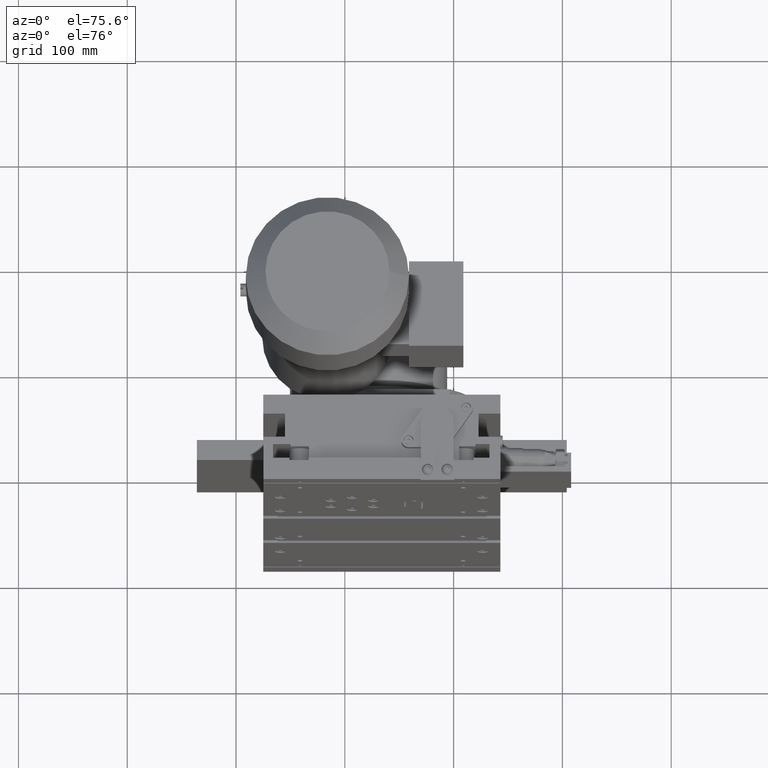
[diagram: clean part render]
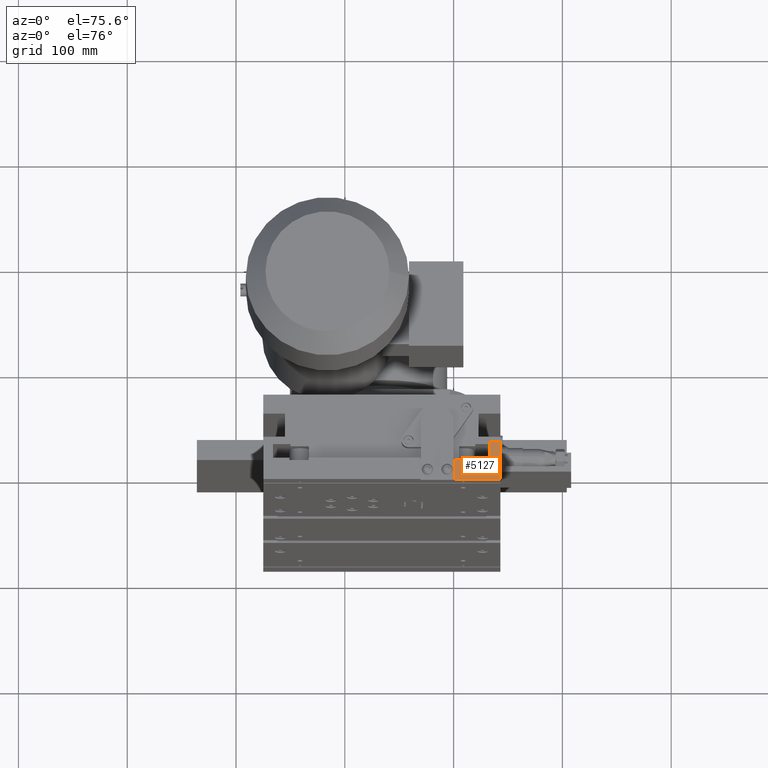
[diagram: same view with one face highlighted and labeled with its STEP entity id]
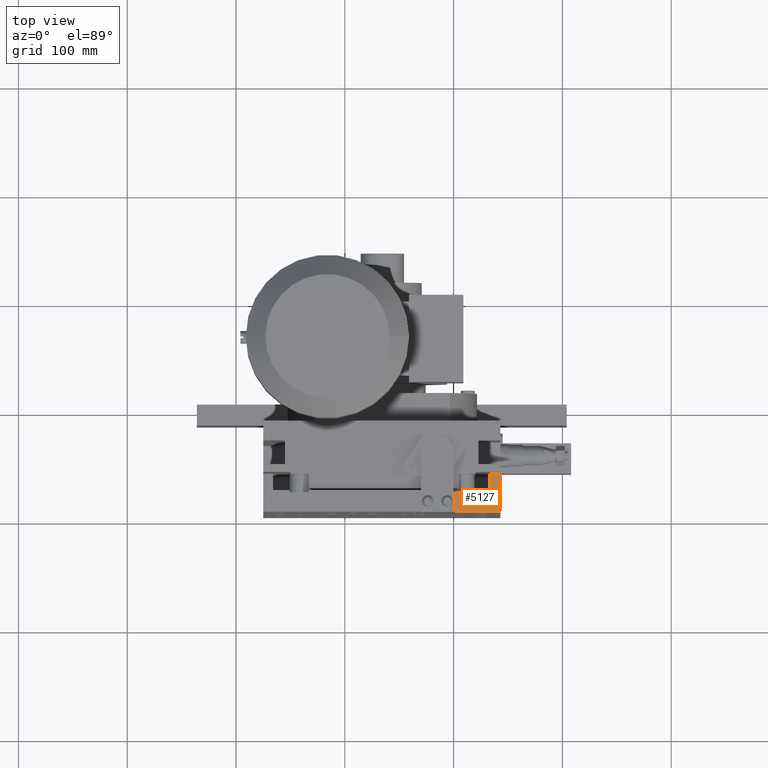
[diagram: same view with one face highlighted and labeled with its STEP entity id]
A machine part, auxiliary view. The second image highlights one B-rep face of the part: STEP entity #5127.
A second angle (top view) of the same face is appended — the face is thin or edge-on in the first view.
In plain terms, the highlighted planar face has unit normal (0, 0, 1).
Its self-contained STEP definition (entity closure, byte-faithful):
#5127=ADVANCED_FACE('',(#10918),#10919,.T.);
#10918=FACE_OUTER_BOUND('',#19362,.T.);
#10919=PLANE('',#19363);
#19362=EDGE_LOOP('',(#31506,#31507,#31508,#31509,#31510,#31511,#31512,#31513));
#19363=AXIS2_PLACEMENT_3D('',#31514,#31515,#31516);
#31506=ORIENTED_EDGE('',*,*,#50552,.T.);
#31507=ORIENTED_EDGE('',*,*,#50553,.T.);
#31508=ORIENTED_EDGE('',*,*,#49951,.T.);
#31509=ORIENTED_EDGE('',*,*,#50554,.T.);
#31510=ORIENTED_EDGE('',*,*,#50555,.T.);
#31511=ORIENTED_EDGE('',*,*,#50556,.T.);
#31512=ORIENTED_EDGE('',*,*,#50557,.T.);
#31513=ORIENTED_EDGE('',*,*,#50558,.T.);
#31514=CARTESIAN_POINT('',(-164.465562071057,-86.1828782216389,27.7777777777778));
#31515=DIRECTION('',(0.000000000000000,0.000000000000000,1.00000000000000));
#31516=DIRECTION('',(1.00000000000000,0.000000000000000,0.000000000000000));
#49951=EDGE_CURVE('',#59468,#59472,#59474,.T.);
#50552=EDGE_CURVE('',#60483,#60484,#60485,.T.);
#50553=EDGE_CURVE('',#60484,#59468,#60486,.T.);
#50554=EDGE_CURVE('',#59472,#60487,#60488,.T.);
#50555=EDGE_CURVE('',#60487,#60489,#60490,.T.);
#50556=EDGE_CURVE('',#60489,#60491,#60492,.T.);
#50557=EDGE_CURVE('',#60491,#60493,#60494,.T.);
#50558=EDGE_CURVE('',#60493,#60483,#60495,.T.);
#59468=VERTEX_POINT('',#73023);
#59472=VERTEX_POINT('',#73029);
#59474=LINE('',#73032,#73033);
#60483=VERTEX_POINT('',#74545);
#60484=VERTEX_POINT('',#74546);
#60485=LINE('',#74547,#74548);
#60486=LINE('',#74549,#74550);
#60487=VERTEX_POINT('',#74551);
#60488=LINE('',#74552,#74553);
#60489=VERTEX_POINT('',#74554);
#60490=LINE('',#74555,#74556);
#60491=VERTEX_POINT('',#74557);
#60492=LINE('',#74558,#74559);
#60493=VERTEX_POINT('',#74560);
#60494=LINE('',#74561,#74562);
#60495=LINE('',#74563,#74564);
#73023=CARTESIAN_POINT('',(11.0344379289425,-68.1828782217322,27.7777777778386));
#73029=CARTESIAN_POINT('',(11.0344379289425,-86.1828782216389,27.7777777777778));
#73032=CARTESIAN_POINT('',(11.0344379289425,-51.1828782217322,27.7777777777778));
#73033=VECTOR('',#87508,1.00000000000000);
#74545=CARTESIAN_POINT('',(28.5344379289425,-66.1828782217322,27.7777777778386));
#74546=CARTESIAN_POINT('',(28.5344379289425,-68.1828782217322,27.7777777778386));
#74547=CARTESIAN_POINT('',(28.5344379289425,-66.1828782217322,27.7777777778386));
#74548=VECTOR('',#88062,1.00000000000000);
#74549=CARTESIAN_POINT('',(28.5344379289425,-68.1828782217322,27.7777777778386));
#74550=VECTOR('',#88063,1.00000000000000);
#74551=CARTESIAN_POINT('',(53.5344379289425,-86.1828782216389,27.7777777777778));
#74552=CARTESIAN_POINT('',(-164.465562071057,-86.1828782216389,27.7777777777778));
#74553=VECTOR('',#88064,1.00000000000000);
#74554=CARTESIAN_POINT('',(53.5344379289425,-51.1828782217322,27.7777777777778));
#74555=CARTESIAN_POINT('',(53.5344379289425,-86.1828782216389,27.7777777777778));
#74556=VECTOR('',#88065,1.00000000000000);
#74557=CARTESIAN_POINT('',(43.5344379289425,-51.1828782217322,27.7777777778386));
#74558=CARTESIAN_POINT('',(53.5344379289425,-51.1828782217322,27.7777777777778));
#74559=VECTOR('',#88066,1.00000000000000);
#74560=CARTESIAN_POINT('',(43.5344379289425,-66.1828782217322,27.7777777778386));
#74561=CARTESIAN_POINT('',(43.5344379289425,-51.1828782217322,27.7777777778386));
#74562=VECTOR('',#88067,1.00000000000000);
#74563=CARTESIAN_POINT('',(43.5344379289425,-66.1828782217322,27.7777777778386));
#74564=VECTOR('',#88068,1.00000000000000);
#87508=DIRECTION('',(0.000000000000000,-1.00000000000000,0.000000000000000));
#88062=DIRECTION('',(0.000000000000000,-1.00000000000000,0.000000000000000));
#88063=DIRECTION('',(-1.00000000000000,-1.98254111540206E-016,0.000000000000000));
#88064=DIRECTION('',(1.00000000000000,0.000000000000000,0.000000000000000));
#88065=DIRECTION('',(0.000000000000000,1.00000000000000,0.000000000000000));
#88066=DIRECTION('',(-1.00000000000000,0.000000000000000,0.000000000000000));
#88067=DIRECTION('',(0.000000000000000,-1.00000000000000,0.000000000000000));
#88068=DIRECTION('',(-1.00000000000000,-2.31296463463574E-016,0.000000000000000));